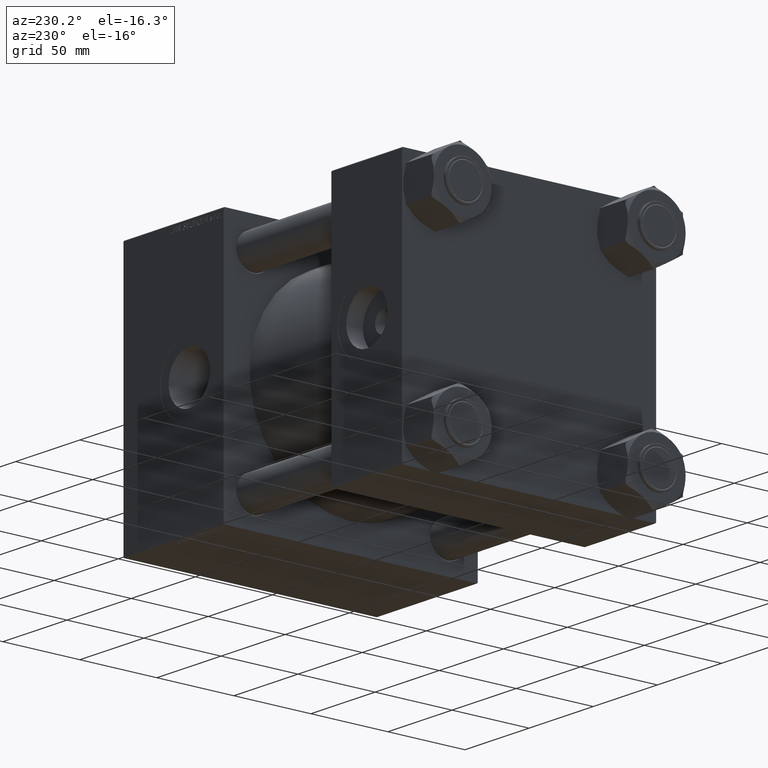
[diagram: clean part render]
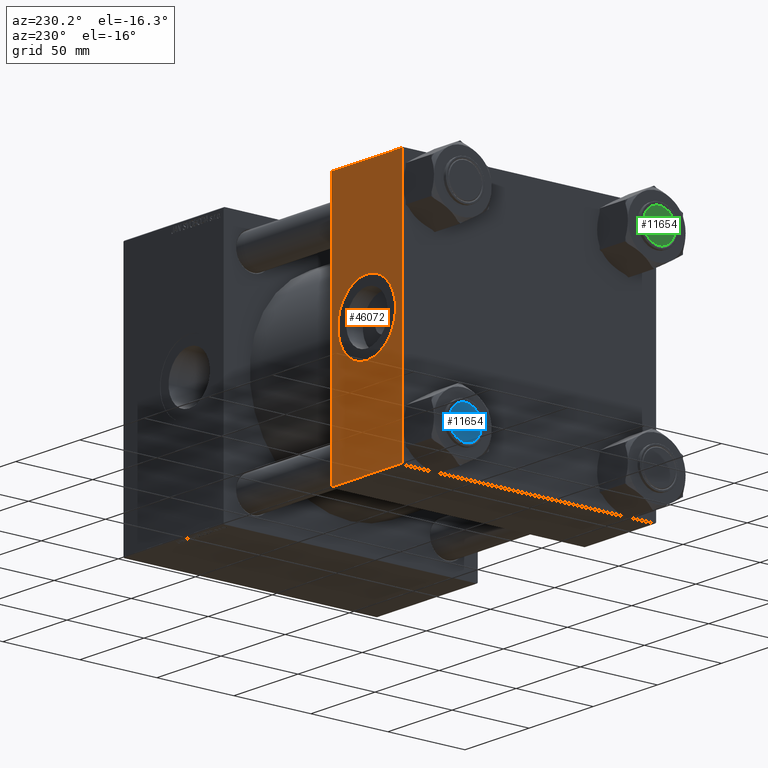
[diagram: same view with three faces highlighted in distinct colors, each labeled with its STEP entity id]
A machine part, auxiliary view with three faces highlighted in distinct colors.
Their STEP definitions:

[orange] entity #46072 — the highlighted planar face has unit normal (0, 1, 0).
#569 = DIRECTION ( 'NONE',  ( -1.000000000000000000, 0.000000000000000000, 0.000000000000000000 ) ) ;
#587 = AXIS2_PLACEMENT_3D ( 'NONE', #47881, #20346, #16493 ) ;
#664 = DIRECTION ( 'NONE',  ( 1.000000000000000000, 0.000000000000000000, 0.000000000000000000 ) ) ;
#3293 = ORIENTED_EDGE ( 'NONE', *, *, #8520, .F. ) ;
#3944 = PLANE ( 'NONE',  #25354 ) ;
#4455 = DIRECTION ( 'NONE',  ( 0.000000000000000000, -0.000000000000000000, 1.000000000000000000 ) ) ;
#5267 = ORIENTED_EDGE ( 'NONE', *, *, #44384, .F. ) ;
#7342 = EDGE_CURVE ( 'NONE', #10868, #17131, #30951, .T. ) ;
#8520 = EDGE_CURVE ( 'NONE', #41267, #25417, #42478, .T. ) ;
#9318 = DIRECTION ( 'NONE',  ( 0.000000000000000000, 0.000000000000000000, -1.000000000000000000 ) ) ;
#10868 = VERTEX_POINT ( 'NONE', #32426 ) ;
#11348 = CARTESIAN_POINT ( 'NONE',  ( 27.50000000000000355, 82.50000000000002842, -22.50000000000000711 ) ) ;
#12193 = DIRECTION ( 'NONE',  ( -0.000000000000000000, 1.000000000000000000, 0.000000000000000000 ) ) ;
#13096 = ORIENTED_EDGE ( 'NONE', *, *, #18408, .T. ) ;
#14299 = CARTESIAN_POINT ( 'NONE',  ( 0.000000000000000000, 82.50000000000002842, 82.00000000000005684 ) ) ;
#15759 = EDGE_LOOP ( 'NONE', ( #3293, #5267 ) ) ;
#15809 = FACE_BOUND ( 'NONE', #15759, .T. ) ;
#16493 = DIRECTION ( 'NONE',  ( 0.000000000000000000, 0.000000000000000000, 1.000000000000000000 ) ) ;
#17131 = VERTEX_POINT ( 'NONE', #35704 ) ;
#17997 = CARTESIAN_POINT ( 'NONE',  ( 27.50000000000000000, 82.50000000000002842, 22.50000000000000711 ) ) ;
#18408 = EDGE_CURVE ( 'NONE', #21228, #10868, #37424, .T. ) ;
#18613 = CARTESIAN_POINT ( 'NONE',  ( 55.00000000000000000, 82.50000000000002842, 82.50000000000002842 ) ) ;
#20346 = DIRECTION ( 'NONE',  ( 0.000000000000000000, 1.000000000000000000, 0.000000000000000000 ) ) ;
#20545 = VERTEX_POINT ( 'NONE', #14299 ) ;
#20916 = LINE ( 'NONE', #36616, #26784 ) ;
#21228 = VERTEX_POINT ( 'NONE', #40894 ) ;
#23261 = CARTESIAN_POINT ( 'NONE',  ( 55.00000000000000000, 82.50000000000002842, 82.50000000000002842 ) ) ;
#23538 = VECTOR ( 'NONE', #569, 1000.000000000000000 ) ;
#25354 = AXIS2_PLACEMENT_3D ( 'NONE', #23261, #12193, #4455 ) ;
#25417 = VERTEX_POINT ( 'NONE', #11348 ) ;
#26784 = VECTOR ( 'NONE', #9318, 1000.000000000000000 ) ;
#26966 = CIRCLE ( 'NONE', #42589, 22.50000000000000711 ) ;
#26992 = ORIENTED_EDGE ( 'NONE', *, *, #30772, .T. ) ;
#28832 = DIRECTION ( 'NONE',  ( 0.000000000000000000, 0.000000000000000000, 1.000000000000000000 ) ) ;
#29519 = ORIENTED_EDGE ( 'NONE', *, *, #7342, .T. ) ;
#30772 = EDGE_CURVE ( 'NONE', #20545, #21228, #35928, .T. ) ;
#30951 = LINE ( 'NONE', #43047, #23538 ) ;
#32031 = VECTOR ( 'NONE', #45142, 1000.000000000000000 ) ;
#32348 = VECTOR ( 'NONE', #664, 1000.000000000000000 ) ;
#32426 = CARTESIAN_POINT ( 'NONE',  ( 55.00000000000000000, 82.50000000000002842, -82.00000000000000000 ) ) ;
#33719 = CARTESIAN_POINT ( 'NONE',  ( 27.50000000000000000, 82.50000000000002842, 0.000000000000000000 ) ) ;
#35668 = CARTESIAN_POINT ( 'NONE',  ( 55.00000000000000000, 82.50000000000002842, 82.00000000000005684 ) ) ;
#35704 = CARTESIAN_POINT ( 'NONE',  ( 0.000000000000000000, 82.50000000000002842, -82.00000000000000000 ) ) ;
#35928 = LINE ( 'NONE', #35668, #32348 ) ;
#36378 = EDGE_CURVE ( 'NONE', #20545, #17131, #20916, .T. ) ;
#36616 = CARTESIAN_POINT ( 'NONE',  ( 0.000000000000000000, 82.50000000000002842, 82.50000000000002842 ) ) ;
#36811 = DIRECTION ( 'NONE',  ( 0.000000000000000000, 1.000000000000000000, 0.000000000000000000 ) ) ;
#37424 = LINE ( 'NONE', #18613, #32031 ) ;
#39742 = FACE_OUTER_BOUND ( 'NONE', #46999, .T. ) ;
#40538 = ORIENTED_EDGE ( 'NONE', *, *, #36378, .F. ) ;
#40894 = CARTESIAN_POINT ( 'NONE',  ( 55.00000000000000000, 82.50000000000002842, 82.00000000000005684 ) ) ;
#41267 = VERTEX_POINT ( 'NONE', #17997 ) ;
#42478 = CIRCLE ( 'NONE', #587, 22.50000000000000711 ) ;
#42589 = AXIS2_PLACEMENT_3D ( 'NONE', #33719, #36811, #28832 ) ;
#43047 = CARTESIAN_POINT ( 'NONE',  ( 55.00000000000000000, 82.50000000000002842, -82.00000000000000000 ) ) ;
#44384 = EDGE_CURVE ( 'NONE', #25417, #41267, #26966, .T. ) ;
#45142 = DIRECTION ( 'NONE',  ( 0.000000000000000000, 0.000000000000000000, -1.000000000000000000 ) ) ;
#46072 = ADVANCED_FACE ( 'NONE', ( #15809, #39742 ), #3944, .T. ) ;
#46999 = EDGE_LOOP ( 'NONE', ( #13096, #29519, #40538, #26992 ) ) ;
#47881 = CARTESIAN_POINT ( 'NONE',  ( 27.50000000000000000, 82.50000000000002842, 0.000000000000000000 ) ) ;

[blue] entity #11654 — the highlighted planar face has unit normal (-1, 0, -0).
#1599 = DIRECTION ( 'NONE',  ( 0.000000000000000000, 0.000000000000000000, 1.000000000000000000 ) ) ;
#2716 = EDGE_LOOP ( 'NONE', ( #48259, #7405 ) ) ;
#4945 = DIRECTION ( 'NONE',  ( 1.000000000000000000, 0.000000000000000000, -0.000000000000000000 ) ) ;
#7405 = ORIENTED_EDGE ( 'NONE', *, *, #35773, .T. ) ;
#8112 = CARTESIAN_POINT ( 'NONE',  ( -10.50000000000006395, 0.000000000000000000, 179.0000000000000000 ) ) ;
#11654 = ADVANCED_FACE ( 'NONE', ( #39719 ), #12939, .T. ) ;
#12191 = VERTEX_POINT ( 'NONE', #36944 ) ;
#12939 = PLANE ( 'NONE',  #13023 ) ;
#13023 = AXIS2_PLACEMENT_3D ( 'NONE', #40225, #1599, #4945 ) ;
#15298 = CIRCLE ( 'NONE', #19376, 10.50000000000006395 ) ;
#18441 = CARTESIAN_POINT ( 'NONE',  ( 0.000000000000000000, 0.000000000000000000, 179.0000000000000000 ) ) ;
#19376 = AXIS2_PLACEMENT_3D ( 'NONE', #32297, #39522, #47484 ) ;
#22061 = DIRECTION ( 'NONE',  ( 1.000000000000000000, 0.000000000000000000, 0.000000000000000000 ) ) ;
#25978 = AXIS2_PLACEMENT_3D ( 'NONE', #18441, #49353, #22061 ) ;
#30760 = VERTEX_POINT ( 'NONE', #8112 ) ;
#32297 = CARTESIAN_POINT ( 'NONE',  ( 0.000000000000000000, 0.000000000000000000, 179.0000000000000000 ) ) ;
#35773 = EDGE_CURVE ( 'NONE', #12191, #30760, #15298, .T. ) ;
#36944 = CARTESIAN_POINT ( 'NONE',  ( 10.50000000000006395, 1.316495309083408562E-15, 179.0000000000000000 ) ) ;
#37108 = EDGE_CURVE ( 'NONE', #30760, #12191, #41602, .T. ) ;
#39522 = DIRECTION ( 'NONE',  ( 0.000000000000000000, 0.000000000000000000, 1.000000000000000000 ) ) ;
#39719 = FACE_OUTER_BOUND ( 'NONE', #2716, .T. ) ;
#40225 = CARTESIAN_POINT ( 'NONE',  ( 0.000000000000000000, 0.000000000000000000, 179.0000000000000000 ) ) ;
#41602 = CIRCLE ( 'NONE', #25978, 10.50000000000006395 ) ;
#47484 = DIRECTION ( 'NONE',  ( 1.000000000000000000, 0.000000000000000000, 0.000000000000000000 ) ) ;
#48259 = ORIENTED_EDGE ( 'NONE', *, *, #37108, .T. ) ;
#49353 = DIRECTION ( 'NONE',  ( 0.000000000000000000, 0.000000000000000000, 1.000000000000000000 ) ) ;

[green] entity #11654 — the highlighted planar face has unit normal (-1, -0, 0).
#1599 = DIRECTION ( 'NONE',  ( 0.000000000000000000, 0.000000000000000000, 1.000000000000000000 ) ) ;
#2716 = EDGE_LOOP ( 'NONE', ( #48259, #7405 ) ) ;
#4945 = DIRECTION ( 'NONE',  ( 1.000000000000000000, 0.000000000000000000, -0.000000000000000000 ) ) ;
#7405 = ORIENTED_EDGE ( 'NONE', *, *, #35773, .T. ) ;
#8112 = CARTESIAN_POINT ( 'NONE',  ( -10.50000000000006395, 0.000000000000000000, 179.0000000000000000 ) ) ;
#11654 = ADVANCED_FACE ( 'NONE', ( #39719 ), #12939, .T. ) ;
#12191 = VERTEX_POINT ( 'NONE', #36944 ) ;
#12939 = PLANE ( 'NONE',  #13023 ) ;
#13023 = AXIS2_PLACEMENT_3D ( 'NONE', #40225, #1599, #4945 ) ;
#15298 = CIRCLE ( 'NONE', #19376, 10.50000000000006395 ) ;
#18441 = CARTESIAN_POINT ( 'NONE',  ( 0.000000000000000000, 0.000000000000000000, 179.0000000000000000 ) ) ;
#19376 = AXIS2_PLACEMENT_3D ( 'NONE', #32297, #39522, #47484 ) ;
#22061 = DIRECTION ( 'NONE',  ( 1.000000000000000000, 0.000000000000000000, 0.000000000000000000 ) ) ;
#25978 = AXIS2_PLACEMENT_3D ( 'NONE', #18441, #49353, #22061 ) ;
#30760 = VERTEX_POINT ( 'NONE', #8112 ) ;
#32297 = CARTESIAN_POINT ( 'NONE',  ( 0.000000000000000000, 0.000000000000000000, 179.0000000000000000 ) ) ;
#35773 = EDGE_CURVE ( 'NONE', #12191, #30760, #15298, .T. ) ;
#36944 = CARTESIAN_POINT ( 'NONE',  ( 10.50000000000006395, 1.316495309083408562E-15, 179.0000000000000000 ) ) ;
#37108 = EDGE_CURVE ( 'NONE', #30760, #12191, #41602, .T. ) ;
#39522 = DIRECTION ( 'NONE',  ( 0.000000000000000000, 0.000000000000000000, 1.000000000000000000 ) ) ;
#39719 = FACE_OUTER_BOUND ( 'NONE', #2716, .T. ) ;
#40225 = CARTESIAN_POINT ( 'NONE',  ( 0.000000000000000000, 0.000000000000000000, 179.0000000000000000 ) ) ;
#41602 = CIRCLE ( 'NONE', #25978, 10.50000000000006395 ) ;
#47484 = DIRECTION ( 'NONE',  ( 1.000000000000000000, 0.000000000000000000, 0.000000000000000000 ) ) ;
#48259 = ORIENTED_EDGE ( 'NONE', *, *, #37108, .T. ) ;
#49353 = DIRECTION ( 'NONE',  ( 0.000000000000000000, 0.000000000000000000, 1.000000000000000000 ) ) ;